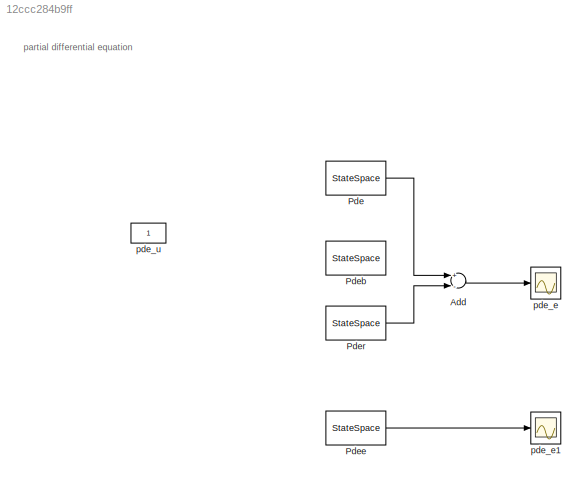
MODEL slx_12ccc284b9ff
KIND model
BLOCK [Sum] Add
  InputSameDT = off
  Inputs = +-
  OutDataTypeStr = Inherit: Inherit via internal rule
  Ports = [2, 1]
  SaturateOnIntegerOverflow = off
BLOCK [StateSpace] Pde
  A = pde_sys.sys.a
  B = pde_sys.sys.b
  C = pde_sys.sys.c
  D = pde_sys.sys.d
  Ports = [1, 1]
  X0 = pde_sys.x0_lb
BLOCK [StateSpace] Pdeb
  A = sysb.sys.a
  B = sysb.sys.b
  C = sysb.sys.c
  D = sysb.sys.d
  Ports = [1, 1]
  X0 = sysb_x0
BLOCK [StateSpace] Pdee
  A = syse.sys.a
  B = syse.sys.b
  C = syse.sys.c
  D = syse.sys.d
  Ports = [1, 1]
  X0 = syse.x0_lb
BLOCK [StateSpace] Pder
  A = sysr.sys.a
  B = sysr.sys.b
  C = sysr.sys.c
  D = sysr.sys.d
  Ports = [1, 1]
  X0 = sysr_x0
BLOCK [Scope] pde_e
  Floating = off
  NumInputPorts = 1
  Ports = [1]
  SaveName = ScopeData4
  ShowLegends = off
BLOCK [Scope] pde_e1
  Floating = off
  NumInputPorts = 1
  Ports = [1]
  ShowLegends = off
BLOCK [Constant] pde_u
ANNOTATION (root): partial differential equation
LINE Add:1 -> pde_e:1
LINE Pde:1 -> Add:1
LINE Pdee:1 -> pde_e1:1
LINE Pder:1 -> Add:2
